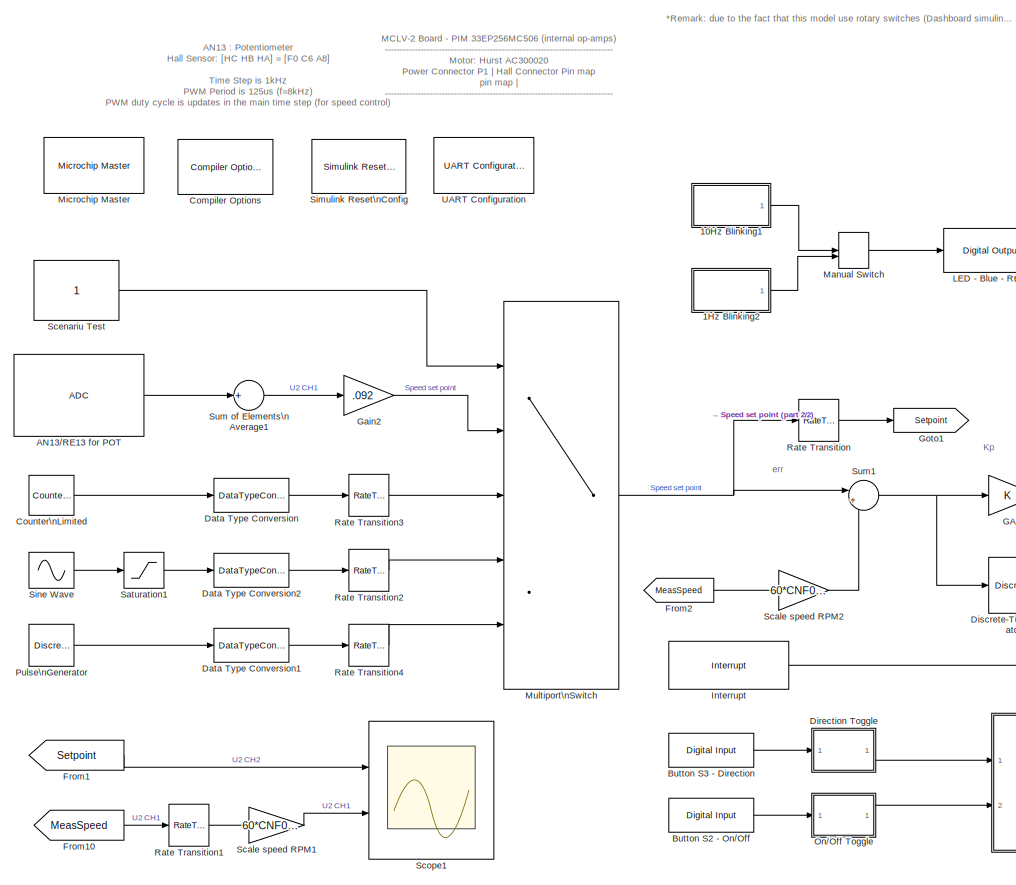
[diagram: root canvas - part 1/2, left side, full height]
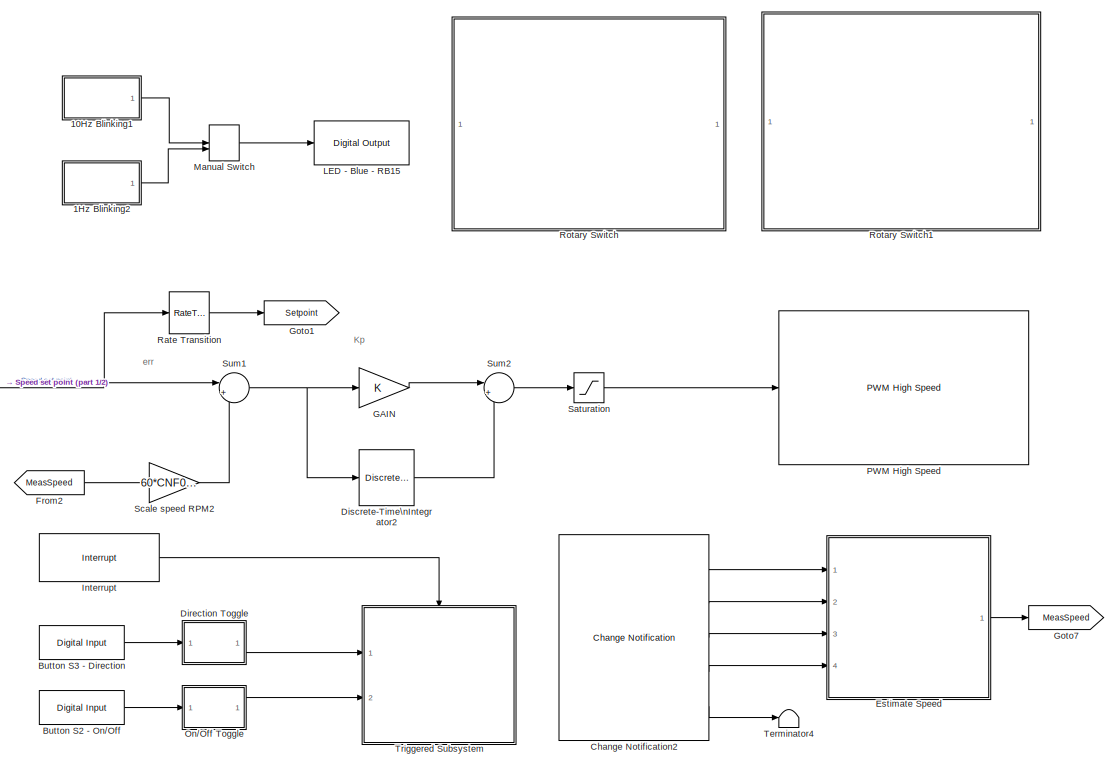
[diagram: root canvas - part 2/2, right side, full height]
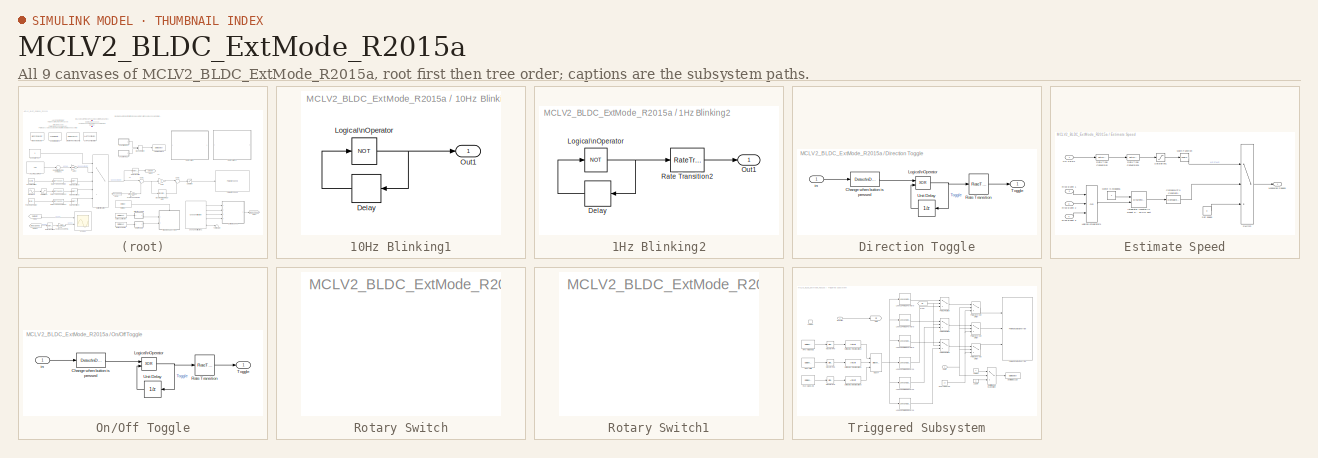
[diagram: thumbnail index - all 9 canvases of the model, root first then tree order]
MODEL MCLV2_BLDC_ExtMode_R2015a
KIND model
BLOCK [SubSystem] 10Hz Blinking1
  Ports = [0, 1]
  RequestExecContextInheritance = off
  SID = 345
BLOCK [Delay] 10Hz Blinking1/Delay
  DelayLength = 1
  InitialCondition = 0
  InputPortMap = u0
  InputProcessing = Inherited
  Ports = [1, 1]
  SID = 346
  SampleTime = .05
BLOCK [Logic] 10Hz Blinking1/Logical\nOperator
  AllPortsSameDT = off
  Operator = NOT
  OutDataTypeStr = boolean
  Ports = [1, 1]
  SID = 347
BLOCK [Outport] 10Hz Blinking1/Out1
  IconDisplay = Port number
  SID = 348
BLOCK [SubSystem] 1Hz Blinking2
  Ports = [0, 1]
  RequestExecContextInheritance = off
  SID = 349
BLOCK [Delay] 1Hz Blinking2/Delay
  DelayLength = 1
  InitialCondition = 0
  InputPortMap = u0
  InputProcessing = Inherited
  Ports = [1, 1]
  SID = 350
  SampleTime = .5
BLOCK [Logic] 1Hz Blinking2/Logical\nOperator
  AllPortsSameDT = off
  Operator = NOT
  OutDataTypeStr = boolean
  Ports = [1, 1]
  SID = 351
BLOCK [Outport] 1Hz Blinking2/Out1
  IconDisplay = Port number
  SID = 353
BLOCK [RateTransition] 1Hz Blinking2/Rate Transition2
  Deterministic = off
  OutPortSampleTime = .05
  SID = 352
BLOCK [Reference] AN13//RE13 for POT  REF=MCHP_Blockset/Analog IO/ADC
  ADC_DMA_CHANNEL = use DMA Channel 1
  ADC_R = < 5    kOhm
  ADC_REF = 1
  ADC_TIMING = [1.4400000000000001e-05]
  ADxCSS = 13
  FORM = 0000 dddd dddd dddd ==> Unsigned integer
  Info = Total Time for Sample & Conversion : 1.44e-05s including 0s (x 8) sample time.
  MCHP_MASTERLINK = MCLV2_BLDC_ExtMode_R2015a/Microchip Master
  MCHP_PORT = {Analog Input 13}{AN13}15:2:E13;
  MUXA_CH0N = off
  MUXA_CH123 = Dynamic Options
  MUXA_CH123_TXT = AN0 : AN1 : AN2
  MUXB_CH0 = AN1
  MUXB_CH0N = on
  MUXB_CH123 = Dynamic Options
  MUXB_CH123_TXT = AN0 : AN1 : AN2
  Mode = 12 bits
  Ports = [0, 1]
  Priority = 5
  SID = 3
  SIMULTANEOUS = Simultaneously on all Channels
  SSRC_SSRCG = Dynamic Options
  SSRC_SSRCG_TXT = 6
  SampleTime = 0.001
  SequenceRepeat = 8
  SequenceTiming = are done as fast as possible ; triggered by user define source
  SourceBlock = MCHP_Blockset/Analog IO/ADC
  Trig_TimeStep = with each update of the ADC block output
  Update_BlockOutput = After all trig and conversion sequence
  nSAMPLECHANNELS = CH0 only
  nSAMPLECHANNELS_12bits = CH0 only
BLOCK [Reference] Button S2 - On//Off  REF=MCHP_Blockset/Digital IO/Digital Input
  MCHP_MASTERLINK = MCLV2_BLDC_ExtMode_R2015a/Microchip Master
  MCHP_PORT = {Digital In}{DIN}2:0:G7;
  ORDERING = None
  PACK = off
  PIN = [7]
  PORT = Dynamic Options
  PORT_TXT = G   [ 6 : 9 ]
  Ports = [0, 1]
  SID = 172
  SIMULTANEOUS = off
  SampleTime = -1
  SourceBlock = MCHP_Blockset/Digital IO/Digital Input
  SourceType = Input driver for Digital Input Pins
BLOCK [Reference] Button S3 - Direction  REF=MCHP_Blockset/Digital IO/Digital Input
  MCHP_MASTERLINK = MCLV2_BLDC_ExtMode_R2015a/Microchip Master
  MCHP_PORT = {Digital In}{DIN}2:0:G6;
  ORDERING = None
  PACK = off
  PIN = [6]
  PORT = Dynamic Options
  PORT_TXT = G   [ 6 : 9 ]
  Ports = [0, 1]
  SID = 146
  SIMULTANEOUS = off
  SampleTime = -1
  SourceBlock = MCHP_Blockset/Digital IO/Digital Input
  SourceType = Input driver for Digital Input Pins
BLOCK [Reference] Change Notification2  REF=MCHP_Blockset/Pulse Input//Output/Change Notification
  CNxmax = [27343     -1     -1     -1]
  ChangeDetected = [1     1     1     2]
  Channel = [0     1     2]
  Channel_EP = [  F0  C6  A8  G7]
  Channel_OLD = [80   38    8  103]
  Channel_UP_Down_Periode = [4     0     0     0]
  IntPriority = 4
  MCHP_MASTERLINK = MCLV2_BLDC_ExtMode_R2015a/Microchip Master
  MCHP_PORT = {Change Notification F0}{CNF0}9:0:F0;{Change Notification C6}{CNC6}9:0:C6;{Change Notification A8}{CNA8}9:0:A8;{Change Notification G7}{CNG7}9:0:G7;
  MCHP_TIMER_REQUEST = {Change Notification 80}{CNF0}7:1:1:0:[]:7700000.000000001;
  MCHP_TIMER_RESULT = [1 30077.125000000022 ]
  MCHP_USER_INTERRUPTS = {CNIE}{CN}{Change Notification}{4};
  MaxChannel = [0.1   0.1   0.1   0.1]
  MaxChannelValue = 2.^[ 14.739]  =>  [27343]
  OutputPortValue = [0     0     0     0]
  Ports = [0, 5]
  SID = 325
  SafeMarge = [10    10    10    10]
  SampleTime = .001
  SourceBlock = MCHP_Blockset/Pulse Input//Output/Change Notification
  SourceType = Input driver for Change Notification Peripheral
  Status = OK
  Timer = [1 -1 -1 -1]
  UserData = DataTag0
  UserDataPersistent = on
  evalin_ws = CNF0max=MCHP_Fun.Hex2num('40DAB3C000000000');
BLOCK [Reference] Compiler Options  REF=MCHP_Blockset/System Configuration/Compiler Options
  AssemblyListing = off
  COMP_LIST = Dynamic Options
  COMP_LIST_TXT = xc16 - v1.36
  DEBUG_INFO = off
  HEAP_SIZE = 0
  LATEST_CMPLR = on
  MAGGREGATE = on
  MCHP_MASTERLINK = MCLV2_BLDC_ExtMode_R2015a/Microchip Master
  MCHP_MULTITHREAD_COMPILATION = on
  MCODE = is less than 32768 (faster)
  MCONST = in code memory
  MDATA = Use only memory below address 8192 (faster)
  MLARGEARRAY = off
  MPLAB_LINKLIB = default
  MPLAB_LINKLIB1 = default
  MSCALAR = Use only memory below address 8192 (faster)
  NO_EDS_WARN = on
  OMF = elf
  OPTIMIZATION_FLTO = on
  OPTIMIZATION_LEVEL = 3
  OPTIMIZATION_REORDER = off
  PRINT_STATISTICS = off
  PROCEDURAL_ABSTRACTION = off
  Ports = []
  Priority = 1
  ProduceHexOutput = on
  SID = 2
  SourceBlock = MCHP_Blockset/System Configuration/Compiler Options
  UNROLL_LOOPS = on
  USE_64BIT_DOUBLE = off
  UseCustom_LinkerScript = off
BLOCK [Reference] Counter\nLimited  REF=simulink/Sources/Counter\nLimited
  Ports = [0, 1]
  SID = 391
  SourceBlock = simulink/Sources/Counter\nLimited
  SourceType = Counter Limited
  tsamp = 0.005
  uplimit = 2000
BLOCK [DataTypeConversion] Data Type Conversion
  ConvertRealWorld = Stored Integer (SI)
  OutDataTypeStr = uint16
  RndMeth = Simplest
  SID = 392
  SaturateOnIntegerOverflow = off
BLOCK [DataTypeConversion] Data Type Conversion1
  ConvertRealWorld = Stored Integer (SI)
  OutDataTypeStr = uint16
  RndMeth = Simplest
  SID = 408
  SaturateOnIntegerOverflow = off
BLOCK [DataTypeConversion] Data Type Conversion2
  ConvertRealWorld = Stored Integer (SI)
  OutDataTypeStr = uint16
  RndMeth = Simplest
  SID = 409
  SaturateOnIntegerOverflow = off
BLOCK [SubSystem] Direction Toggle
  Ports = [1, 1]
  RequestExecContextInheritance = off
  SID = 139
BLOCK [Reference] Direction Toggle/Change when button is pressed  REF=simulink/Logic and Bit\nOperations/Detect\nDecrease
  InputProcessing = Inherited
  OutDataTypeStr = uint8
  Ports = [1, 1]
  SID = 141
  SourceBlock = simulink/Logic and Bit\nOperations/Detect\nDecrease
  SourceType = Detect Decrease
  vinit = 0.0
BLOCK [Logic] Direction Toggle/Logical\nOperator
  AllPortsSameDT = off
  Operator = XOR
  OutDataTypeStr = boolean
  Ports = [2, 1]
  SID = 142
BLOCK [RateTransition] Direction Toggle/Rate Transition
  Deterministic = off
  Integrity = off
  SID = 143
BLOCK [Outport] Direction Toggle/Toggle
  IconDisplay = Port number
  SID = 145
BLOCK [UnitDelay] Direction Toggle/Unit Delay
  SID = 144
  SampleTime = -1
BLOCK [Inport] Direction Toggle/in
  IconDisplay = Port number
  SID = 140
BLOCK [DiscreteIntegrator] Discrete-Time\nIntegrator2
  LimitOutput = on
  LowerSaturationLimit = 0
  OutDataTypeStr = int16
  Ports = [1, 1]
  SID = 313
  SampleTime = -1
  SaturateOnIntegerOverflow = on
  UpperSaturationLimit = PWMmax
  gainval = 20
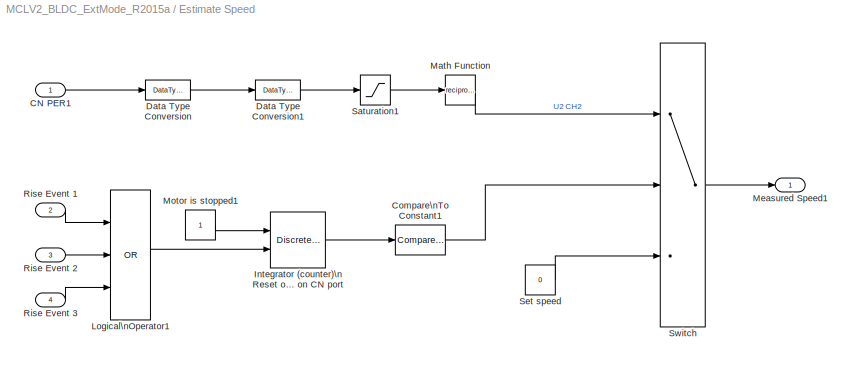
BLOCK [SubSystem] Estimate Speed
  Ports = [4, 1]
  RequestExecContextInheritance = off
  SID = 326
BLOCK [Inport] Estimate Speed/CN PER1
  IconDisplay = Port number
  SID = 327
BLOCK [Reference] Estimate Speed/Compare\nTo Constant1  REF=simulink/Logic and Bit\nOperations/Compare\nTo Constant
  OutDataTypeStr = boolean
  Ports = [1, 1]
  SID = 331
  SourceBlock = simulink/Logic and Bit\nOperations/Compare\nTo Constant
  SourceType = Compare To Constant
  ZeroCross = on
  const = 100
  relop = <=
BLOCK [DataTypeConversion] Estimate Speed/Data Type Conversion
  OutDataTypeStr = uint16
  RndMeth = Floor
  SID = 332
  SaturateOnIntegerOverflow = off
BLOCK [DataTypeConversion] Estimate Speed/Data Type Conversion1
  OutDataTypeStr = double
  RndMeth = Floor
  SID = 333
  SaturateOnIntegerOverflow = off
BLOCK [DiscreteIntegrator] Estimate Speed/Integrator (counter)\nReset on each rise edge\ndetected on CN port
  ExternalReset = level
  IntegratorMethod = Accumulation: Forward Euler
  LimitOutput = on
  LowerSaturationLimit = 0
  OutDataTypeStr = uint16
  Ports = [2, 1]
  SID = 334
  SampleTime = -1
  SaturateOnIntegerOverflow = on
  UpperSaturationLimit = 255
  gainval = 1
BLOCK [Logic] Estimate Speed/Logical\nOperator1
  AllPortsSameDT = off
  Inputs = 3
  Operator = OR
  OutDataTypeStr = boolean
  Ports = [3, 1]
  SID = 335
BLOCK [Math] Estimate Speed/Math Function
  Operator = reciprocal
  OutDataTypeStr = double
  OutputSignalType = real
  Ports = [1, 1]
  SID = 336
BLOCK [Outport] Estimate Speed/Measured Speed1
  IconDisplay = Port number
  SID = 341
BLOCK [Constant] Estimate Speed/Motor is stopped1
  OutDataTypeStr = Inherit: Inherit via back propagation
  SID = 337
BLOCK [Inport] Estimate Speed/Rise Event 1
  IconDisplay = Port number
  Port = 2
  SID = 328
BLOCK [Inport] Estimate Speed/Rise Event 2
  IconDisplay = Port number
  Port = 3
  SID = 329
BLOCK [Inport] Estimate Speed/Rise Event 3
  IconDisplay = Port number
  Port = 4
  SID = 330
BLOCK [Saturate] Estimate Speed/Saturation1
  InputPortMap = u0
  LowerLimit = 1
  Ports = [1, 1]
  SID = 338
  UpperLimit = 65535
BLOCK [Constant] Estimate Speed/Set speed
  OutDataTypeStr = Inherit: Inherit via back propagation
  SID = 339
  Value = 0
BLOCK [Switch] Estimate Speed/Switch
  Criteria = u2 ~= 0
  InputSameDT = off
  SID = 340
  SaturateOnIntegerOverflow = off
BLOCK [From] From1
  GotoTag = Setpoint
  SID = 307
BLOCK [From] From10
  GotoTag = MeasSpeed
  SID = 222
BLOCK [From] From2
  GotoTag = MeasSpeed
  SID = 310
BLOCK [Gain] GAIN
  OutDataTypeStr = int16
  ParamDataTypeStr = fixdt(1,16,10)
  RndMeth = Round
  SID = 314
BLOCK [Gain] Gain2
  Gain = .092
  OutDataTypeStr = uint16
  ParamDataTypeStr = Inherit: Inherit from 'Gain'
  RndMeth = Round
  SID = 317
BLOCK [Goto] Goto1
  GotoTag = Setpoint
  SID = 311
BLOCK [Goto] Goto7
  GotoTag = MeasSpeed
  SID = 343
BLOCK [Reference] Interrupt  REF=MCHP_Blockset/System Functions/Interrupt
  FPUNoSave = on
  Info = 0
  IntPriority = 4
  IntPriority_Info = 5
  Interruption = Dynamic Options
  InterruptionLongDesc = Change Notification
  Interruption_TXT = CN
  MCHP_MASTERLINK = MCLV2_BLDC_ExtMode_R2015a/Microchip Master
  Ports = [0, 1]
  SID = 8
  SS_ARCH = 16
  SS_ASYNCHRONOUS_INTERRUPT = 1
  SS_AsyncTaskPriority = 8
  SS_AsyncTimerRes = -1
  SS_TIMESOURCE = 1
  SourceBlock = MCHP_Blockset/System Functions/Interrupt
  SourceType = Interruption (Call Simulink Subfunction)
  StartupExecute = off
  Status = OK
  TIMER_Resolution = Dynamic Options
  TIMER_Resolution_TXT = Resol: 0.01429(us)  -  MaxPer: 0.936(ms)
  Triggered_Sub_TimeSource = is derived from model base rate
  TrigsPeriod = 0
BLOCK [Reference] LED - Blue - RB15  REF=MCHP_Blockset/Digital IO/Digital Output
  MCHP_MASTERLINK = MCLV2_BLDC_ExtMode_R2015a/Microchip Master
  ORDERING = None
  PACK = off
  PIN = [6]
  PORT = Dynamic Options
  PORT_TXT = D   [ 5  6  8 ]
  Ports = [1]
  READPREVIOUS = off
  SID = 354
  SIMULTANEOUS = off
  SampleTime = -1
  SourceBlock = MCHP_Blockset/Digital IO/Digital Output
BLOCK [ManualSwitch] Manual Switch
  CurrentSetting = 0
  SID = 355
BLOCK [Reference] Microchip Master  REF=MCHP_Blockset/System Configuration/Microchip Master
  ACLKCON = Optimized for PWM resolution & ADC conversion speed
  ACTIV_PLL = on
  ACTIV_PLL_spd = on
  AIVTDIS = Disable Alternate Vector Table
  ALTADREF = Not used
  ALTCMPI = Not used
  ALTCVREF = Not used
  ALTI2C = I2C mapped to SDA1/SCL1 pins
  ALTI2C1 = I2C1 mapped to SDA1/SCL1 pins
  ALTI2C2 = I2C2 mapped to SDA2/SCL2 pins
  ALTI2C3 = I2C3 mapped to SDA3/SCL3 pins
  ALTPMP = Not used
  ALTQIO = QEA1; QEB1; INDX1 are selected as inputs to QEI1
  ALTRB6 = Not used
  ALTSS1 = SS1A is selected as the I/O pin for SPI1
  ALTVREF = Not used
  APL = Aux Flash Code protect is disabled
  APLK = Aux Flash Write Protection or Code Protection is Enabled
  ATMOD8 = Not used
  AWRP = Aux Flash may be written
  BACKBUG = Not used
  BKBUG = Not used
  BODENV = 2.7V
  BOOTISA = Boot code and Exception code is MIPS32
  BOREN = Disable
  BOREN0 = Enabled
  BOREN1 = Not used
  BORV = Not used
  BSEN = No Boot Segment
  BSLIM = Not used
  BSS = No Boot program Flash segment
  BSS2 = No Boot Segment
  BTMODE = Not used
  BTSWP = BOOTSWP instruction is disabled
  BUSYFLAG = Dynamic Options
  BUSYFLAG_TXT = None
  BWP = Not used
  BWRP = Boot Segment may be written
  CMPPOL0 = Hysteresis is applied to falling edge
  CMPPOL1 = Hysteresis is applied to falling edge
  COE = Not used
  CP = Protection Disabled
  CSEQ = Not used
  CSS = No Protection (other than CWRP)
  CTXT1 = Not Assigned
  CTXT2 = Not Assigned
  CWRP = Configuration Segment may be written
  DBCC = No Cross Connection between DAC outputs
  DBGPER = Allow CPU access to all permission regions
  DEBUG = Debugger is disabled
  DFMCY = Not used
  DISUVREG = Not used
  DMTCNT = 2^31 (2147483648)
  DMTEN = Dead Man Timer is Enabled and cannot be disabled by software
  DMTINTV = Window/Interval value is 127/128 counter value
  DMTIVT = Not used
  DSBOREN = Enable ZPBOR during Deep Sleep Mode
  DSLPBOR = Not used
  DSSWEN = Not used
  DSWDTEN = Enable DSWDT during Deep Sleep Mode
  DSWDTOSC = Select LPRC as DSWDT Reference clock
  DSWDTPS = 1:2^36
  EBS = No Boot EEPROM
  EJTAGBEN = Normal EJTAG functionality
  ESS = No Segment Data EEPROM
  EXTDDRSIZE = Not used
  FCANIO = Not used
  FCKSM = Clock switching is enabled;Fail-safe Clock Monitor is disabled
  FCKSMEN = Sw Disabled; Mon Disabled
  FDMTEN = Deadman Timer is disabled
  FECCCON = ECC and Dynamic ECC are disabled (ECCCON bits are writable)
  FETHIO = Default Ethernet I/O
  FMIIEN = MII Enabled
  FNOSC = Primary Oscillator (XT; HS; EC)
  FOS = Primary Oscillator
  FOSFPR = HS3 w/PLL 16x
  FPBDIV = Not used
  FPLLICLK = FRC is input to the System PLL
  FPLLIDIV = 8x Divider
  FPLLMUL = Not used
  FPLLMULT = PLL Multiply by 128
  FPLLODIV = 32x Divider
  FPLLRNG = 34-68 MHz Input
  FPR = ECIO w/ PLL 16x
  FPWRT = 128ms
  FRANGE = High Range
  FSLEEP = Flash is powered down when the device is in Sleep mode
  FSOSCEN = Enable SOSC
  FSRSSEL = Not used
  FUSBIDIO = Controlled by the USB Module
  FVBUSONIO = Not used
  FWDTEN = Disable
  FWDTWINSZ = Window size is 25%
  FWPSA = 1:512
  FWPSA0 = 1:128
  FWPSB = 1:16
  GCP = General Segment Code protect is Disabled
  GSS = User program memory is not code-protected
  GSS0 = Not used
  GSSK = General Segment Write Protection or Code Protection is Enabled
  GWRP = General Segment may be written
  HPOL = PWM module high side output pins have active-high output polarity
  HYST0 = 45 mV Hysteresis
  HYST1 = 45 mV Hysteresis
  I2C1SEL = Not used
  I2C2SEL = Not used
  ICESEL = Communicate on PGEC1/PGED1
  ICS = Communicate on PGEC2 and PGED2
  IESO = Start up with FRC; then switch
  INT_PRIORITY_DMA = 0
  IOL1WAY = Allow only one reconfiguration
  JTAGEN = Disable
  LPCFG = Not used
  LPOL = PWM module low side output pins have active-high output polarity
  LPRCSEL = Not used
  LVRCFG = Not used
  MCHPVAR = MCHP.fcy.MIPS=70000000;MCHP.fcy.SYSCLK=70000000;MCHP.fcy.ADC=70000000;MCHP.fcy.Comparator=70000000;MCHP.fcy.I2C=70000000;MCHP.fcy.SPI=70000000;MCHP.fcy.UART=70000000;MCHP.fcy.Timers=70000000;MCHP.fcy.OC=70000000;MCHP.fcy.IC=70000000;MCHP.fcy.Ports=70000000;MCHP.fcy.QEI=70000000;MCHP.PowerSave=0;MCHP.TimeStepFactor=-1000;MCHP.TimeStep_Timer=-1;MCHP.NTIMERS=5;MCHP.id.name='33EP256MC506';MCHP.id.N=re...<+13666ch>
  MCHP_CRC = 6833710
  MCHP_PLLRegisters = [5    243  16385     -1     -1]
  MCHP_TIMER_RESULT = [ ]
  MCLRE = Enabled
  MIPS = 70 * 1e6
  MIPS_DESIRED = 70e6
  MIPS_DESIRED_spd = 70e6
  ON = Not used
  OSCILLATOR_SELECT = Crystal / Ceramic resonator
  OSCILLATOR_SELECT_spd = Crystal / Ceramic resonator
  OSCIOFCN = Not used
  OSCIOFNC = general purpose digital I/O pin
  PGL1WAY = Allow only one reconfiguration
  PICREF = 33EP256MC506
  PLL96MHZ = Not used
  PLLDIV = Not used
  PLLKEN = Clock switch to PLL source will wait until the PLL lock signal is valid.
  PLLSS = Not used
  PLL_96MHZ = Not used
  PMDL1WAY = Allow only one reconfiguration
  POSCBOOST = Boost the kick start of the oscillator
  POSCFREQ = Not used
  POSCGAIN = 2x gain setting
  POSCMD = XT Crystal Oscillator Mode
  POSCMOD = Primary osc disabled
  POWERSAVE = off
  PWMLOCK = PWM registers may be written without key sequence
  PWMPIN = PWM module pins controlled by PORT register at device Reset
  PWP = Not used
  PWRTEN = Not used
  Ports = []
  Priority = 1
  QUARTZ = 8e6
  QUARTZ_spd = 8e6
  RBS = No Boot RAM
  RES = Not used
  RES1 = Not used
  RES2 = Not used
  RESERVED1 = Not used
  RETCFG = Not used
  RSS = No Secure RAM
  RSTPRI = Device will obtain reset instruction from Primary flash
  RTCBAT = Not used
  RTCOSC = Not used
  SEQNUM = Not used
  SID = 1
  SMCLR = MCLR pin generates a normal system Reset
  SOSCBOOST = Boost the kick start of the oscillator
  SOSCGAIN = 2x gain setting
  SOSCSEL = Not used
  SOSCSRC = Not used
  SSS = No Secure Segment
  SWRP = Secure segment may be written
  SourceBlock = MCHP_Blockset/System Configuration/Microchip Master
  TEMP = Not used
  TIMESTEP_REF = ADC
  TRCEN = Trace features in the CPU are enabled
  TSEQ = Not used
  UPLLEN = USB PLL Disabled
  UPLLFSEL = USB PLL input is 24 MHz
  UPLLIDIV = Not used
  USERID = Not used
  VBTBOR = Not used
  WDT = Disable
  WDTCLK = Not used
  WDTCMX = Not used
  WDTEN = Disable
  WDTPOST = 1:32768
  WDTPRE = 1:128
  WDTPS = 1:1048576
  WDTSPGM = WDT stops during Flash programming
  WDTWIN = WDT Window is 25% of WDT period
  WINDIS = Watchdog Timer in Non-Window mode
  WPCFG = Not used
  WPDIS = Not used
  WPEND = Not used
  WPFP = Not used
  WUTSEL = Not used
  WWDTEN = Non-Window mode
  XTBST = Boost the kick-start
  XTCFG = 24-32 MHz crystals
  nSEQNUM = Not used
BLOCK [MultiPortSwitch] Multiport\nSwitch
  InputSameDT = off
  Inputs = 4
  Ports = [5, 1]
  SID = 366
  SaturateOnIntegerOverflow = off
BLOCK [SubSystem] On//Off Toggle
  Ports = [1, 1]
  RequestExecContextInheritance = off
  SID = 173
BLOCK [Reference] On//Off Toggle/Change when button is pressed  REF=simulink/Logic and Bit\nOperations/Detect\nDecrease
  InputProcessing = Inherited
  OutDataTypeStr = uint8
  Ports = [1, 1]
  SID = 175
  SourceBlock = simulink/Logic and Bit\nOperations/Detect\nDecrease
  SourceType = Detect Decrease
  vinit = 0.0
BLOCK [Logic] On//Off Toggle/Logical\nOperator
  AllPortsSameDT = off
  Operator = XOR
  OutDataTypeStr = boolean
  Ports = [2, 1]
  SID = 176
BLOCK [RateTransition] On//Off Toggle/Rate Transition
  Deterministic = off
  Integrity = off
  SID = 177
BLOCK [Outport] On//Off Toggle/Toggle
  IconDisplay = Port number
  SID = 179
BLOCK [UnitDelay] On//Off Toggle/Unit Delay
  SID = 178
  SampleTime = -1
BLOCK [Inport] On//Off Toggle/in
  IconDisplay = Port number
  SID = 174
BLOCK [Reference] PWM High Speed  REF=MCHP_Blockset/PWM IO/PWM High Speed
  ADC_VARTRIG = {PWM Primary Special Event Trigger;6}
  ChkCurBlkOut = [1  0  0  0  0  0  0]
  ChkCurBlkOutTime = [1  0  1  0  0  0  0]
  InitDC = { '20','0.0004','0.0003','50','50','50','50';'0.001','0.001','0.001','50','50','50','50'}
  InitP2 = { '0.000125','0.001','0.001','0.001','0.001','0.001','0.001';'0.001','0.001','0.001','0.001','0.001','0.001','0.001'}
  InitPh = { '0','0','0','0.001','0.001','0.001','0.001';'0','0','0','0.001','0.001','0.001','0.001'}
  MCHP_MASTERLINK = MCLV2_BLDC_ExtMode_R2015a/Microchip Master
  MCHP_PORT = {PWM1 Fault}{FLT32}4:0:B4;{PWM2 Fault}{FLT32}4:0:B4;{PWM3 Fault}{FLT32}4:0:B4;{PWM1H}{PWM1H}4:4:B14;{PWM1L}{PWM1L}4:4:B15;{PWM2H}{PWM2H}4:4:B12;{PWM2L}{PWM2L}4:4:B13;{PWM3H}{PWM3H}4:4:B10;{PWM3L}{PWM3L}4:4:B11;
  MCHP_VERSION = v3.38
  ORDERING = None
  Parameter50 = 0
  Ports = [1]
  SID = 5
  S_DWORK_Size = []
  S_DWORK_Type = []
  S_INPUT = [5]
  S_INPUT_Size = [1]
  S_OUTPUT = []
  S_OUTPUT_Size = []
  SampleTime = -1
  SourceBlock = MCHP_Blockset/PWM IO/PWM High Speed
  UserData = DataTag1
  UserDataPersistent = on
  chk1 = [0  0  0  0  0]
  chkDC = [1  1  1  1  1  1  1 ; 0  0  0  1  1  1  1]
  chkFltBlkOut = [0  0  0  0  0  0  0]
  chkHL1 = [1  1  1  1  1  1  1 ; 1  1  1  1  1  1  1]
  chkP2 = [0  1  1  1  1  1  1 ; 1  0  0  1  1  1  1]
  chkPh = [0  0  0  1  1  1  1 ; 0  0  0  1  1  1  1]
  chkSEvTrigx = [0  0  0  1  1  1  1]
  edAltDTRx = { '1e-06','1e-06','1e-06','1e-05','1e-05','1e-05','1e-05'}
  edDTRx = { '1e-06','1e-06','1e-06','1e-05','1e-05','1e-05','1e-05'}
  edLEB = { '100e-9','50e-9','150e-9','50e-9','50e-9','50e-9','50e-9'}
  edSEvTrigx = { '0.000125','-1','-1','-1','-1','-1','-1'}
  evalin_ws = PWMmax = 17499;PWM1max = 17499;PWM2max = 17499;PWM3max = 17499;
  maxP1 = { '0.000125','0.001','0.001','0.001','0.001','0.001','0.001';'0.001','0.001','1e-06','0.001','0.001','0.001','0.001'}
  pop1 = [1]
  popBLANKSEL = [1  1  1  1  1  1  1]
  popBPHHBPHL = [1  1  1  1  1  1  1]
  popBPLHBPLL = [1  1  1  1  1  1  1]
  popCurActiveH = [1  1  1  1  1  1  1]
  popCurEnabled = [1  1  1  1  1  1  1]
  popCurForceH = [2  1  2  1  1  1  1]
  popCurForceL = [2  1  2  1  1  1  1]
  popCurPin = [33  31  32  16  16  16  16]
  popDT = [1  1  1  3  3  3  3]
  popFLTLEBEN_CLLEBEN = [1  1  1  1  1  1  1]
  popFlt = [2  2  2  1  1  1  1]
  popFltActivH = [2  2  2  1  1  1  1]
  popFltForceH = [2  2  2  2  2  2  2]
  popFltForceL = [2  2  2  1  1  1  1]
  popFltPin = [20  20  20   4   4   4   4]
  popFltPinRp = [1  1  1  1  1  1  1]
  popIndepFaultMode = [1  1  1  1  1  1  1]
  popPHR_PHF = [2  1  1  1  1  1  1]
  popPLR_PLF = [3  1  1  1  1  1  1]
BLOCK [DiscretePulseGenerator] Pulse\nGenerator
  Amplitude = 2000
  Period = 10000
  Ports = [0, 1]
  PulseWidth = 5000
  SID = 399
  SampleTime = 0.001
BLOCK [RateTransition] Rate Transition
  Deterministic = off
  OutPortSampleTime = 0.01
  SID = 362
BLOCK [RateTransition] Rate Transition1
  Deterministic = off
  OutPortSampleTime = 0.01
  SID = 365
BLOCK [RateTransition] Rate Transition2
  Deterministic = off
  SID = 393
BLOCK [RateTransition] Rate Transition3
  SID = 394
BLOCK [RateTransition] Rate Transition4
  Deterministic = off
  SID = 398
BLOCK [SubSystem] Rotary Switch
  DialogController = hmiCreateDDGDialog
  DialogControllerArgs = DataTag2
  IsWebBlock = on
  MaskHideContents = on
  Ports = []
  RequestExecContextInheritance = off
  SID = 375
BLOCK [SubSystem] Rotary Switch1
  DialogController = hmiCreateDDGDialog
  DialogControllerArgs = DataTag3
  IsWebBlock = on
  MaskHideContents = on
  Ports = []
  RequestExecContextInheritance = off
  SID = 400
BLOCK [Saturate] Saturation
  InputPortMap = u0
  LinearizeAsGain = off
  LowerLimit = 0
  OutDataTypeStr = uint16
  Ports = [1, 1]
  SID = 39
  UpperLimit = PWMmax
BLOCK [Saturate] Saturation1
  InputPortMap = u0
  LinearizeAsGain = off
  LowerLimit = 0
  Ports = [1, 1]
  SID = 395
  UpperLimit = 2000
BLOCK [Gain] Scale speed RPM1
  Gain = 60*CNF0max / (5*0.1)
  OutDataTypeStr = uint16
  ParamDataTypeStr = Inherit: Inherit via internal rule
  RndMeth = Round
  SID = 305
BLOCK [Gain] Scale speed RPM2
  Gain = 60*CNF0max / (5*0.1)
  OutDataTypeStr = uint16
  ParamDataTypeStr = Inherit: Inherit via internal rule
  RndMeth = Round
  SID = 319
BLOCK [Constant] Scenariu Test
  OutDataTypeStr = uint16
  SID = 367
BLOCK [Scope] Scope1
  DataFormat = StructureWithTime
  Floating = off
  LimitDataPoints = off
  NumInputPorts = 2
  Ports = [2]
  SID = 403
  SaveName = ScopeData1
  TimeRange = 25
  YMax = 3387.375~5
  YMin = -376.375~-5
BLOCK [Reference] Simulink Reset\nConfig  REF=MCHP_Blockset/System Configuration/Simulink Reset\nConfig
  MCHP_MASTERLINK = 0
  Ports = []
  SID = 320
  SourceBlock = MCHP_Blockset/System Configuration/Simulink Reset\nConfig
BLOCK [Sin] Sine Wave
  Amplitude = 2000
  Ports = [0, 1]
  SID = 396
  SampleTime = 0.01
  Samples = 4096
  SineType = Sample based
BLOCK [Sum] Sum of Elements\nAverage1
  AccumDataTypeStr = uint16
  InputSameDT = off
  Inputs = +
  OutDataTypeStr = uint16
  Ports = [1, 1]
  SID = 318
  SaturateOnIntegerOverflow = off
BLOCK [Sum] Sum1
  AccumDataTypeStr = fixdt(1,16,-1)
  IconShape = round
  InputSameDT = off
  Inputs = |+-
  OutDataTypeStr = fixdt(1,16,-1)
  Ports = [2, 1]
  SID = 316
BLOCK [Sum] Sum2
  AccumDataTypeStr = int16
  IconShape = round
  InputSameDT = off
  Inputs = |++
  OutDataTypeStr = uint16
  Ports = [2, 1]
  SID = 315
BLOCK [Terminator] Terminator4
  SID = 344
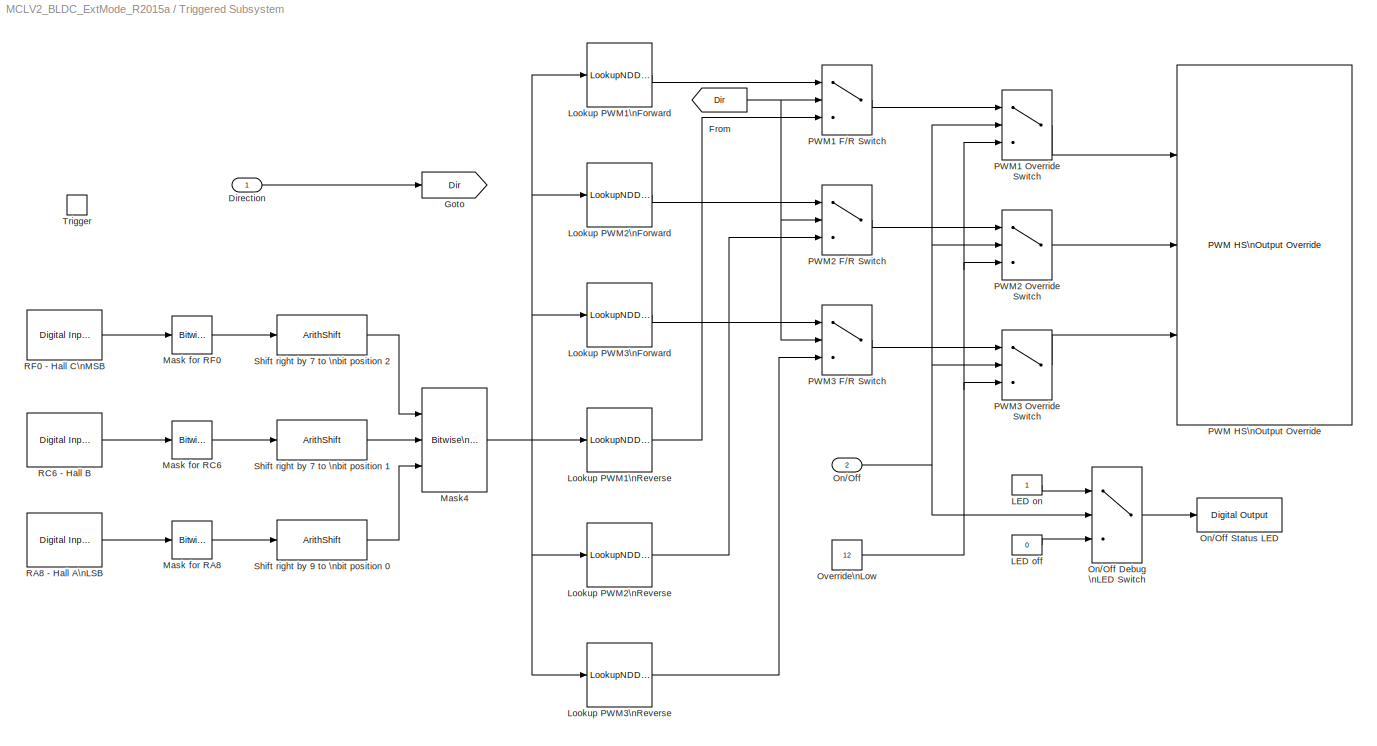
BLOCK [SubSystem] Triggered Subsystem
  Ports = [2, 0, 0, 1]
  RequestExecContextInheritance = off
  SID = 72
  TreatAsAtomicUnit = on
BLOCK [Inport] Triggered Subsystem/Direction
  IconDisplay = Port number
  SID = 136
BLOCK [From] Triggered Subsystem/From
  GotoTag = Dir
  SID = 138
BLOCK [Goto] Triggered Subsystem/Goto
  GotoTag = Dir
  SID = 137
BLOCK [Constant] Triggered Subsystem/LED off
  OutDataTypeStr = boolean
  SID = 190
  Value = 0
BLOCK [Constant] Triggered Subsystem/LED on
  OutDataTypeStr = boolean
  SID = 189
BLOCK [LookupNDDirect] Triggered Subsystem/Lookup PWM1\nForward
  NumberOfTableDimensions = 1
  Ports = [1, 1]
  SID = 9
  Table = [12 13 4 12 12 13 4 12]
  TableDataTypeStr = uint16
BLOCK [LookupNDDirect] Triggered Subsystem/Lookup PWM1\nReverse
  NumberOfTableDimensions = 1
  Ports = [1, 1]
  SID = 133
  Table = [12 4 13 12 12 4 13 12]
  TableDataTypeStr = uint16
BLOCK [LookupNDDirect] Triggered Subsystem/Lookup PWM2\nForward
  NumberOfTableDimensions = 1
  Ports = [1, 1]
  SID = 70
  Table = [12 12 13 13 4 4 12 12]
  TableDataTypeStr = uint16
BLOCK [LookupNDDirect] Triggered Subsystem/Lookup PWM2\nReverse
  NumberOfTableDimensions = 1
  Ports = [1, 1]
  SID = 134
  Table = [12 12 4 4 13 13 12 12]
  TableDataTypeStr = uint16
BLOCK [LookupNDDirect] Triggered Subsystem/Lookup PWM3\nForward
  NumberOfTableDimensions = 1
  Ports = [1, 1]
  SID = 71
  Table = [12 4 12 4 13 12 13 12]
  TableDataTypeStr = uint16
BLOCK [LookupNDDirect] Triggered Subsystem/Lookup PWM3\nReverse
  NumberOfTableDimensions = 1
  Ports = [1, 1]
  SID = 135
  Table = [12 13 12 13 4 12 4 12]
  TableDataTypeStr = uint16
BLOCK [Reference] Triggered Subsystem/Mask for RA8  REF=simulink/Logic and Bit\nOperations/Bitwise\nOperator
  BitMask = bin2dec('0000 0001 0000 0000')
  BitMaskRealWorld = Stored Integer
  NumInputPorts = 1
  Ports = [1, 1]
  SID = 113
  SourceBlock = simulink/Logic and Bit\nOperations/Bitwise\nOperator
  SourceType = Bitwise Operator
  UseBitMask = on
  logicop = AND
BLOCK [Reference] Triggered Subsystem/Mask for RC6  REF=simulink/Logic and Bit\nOperations/Bitwise\nOperator
  BitMask = bin2dec('0000 0000 0100 0000')
  BitMaskRealWorld = Stored Integer
  NumInputPorts = 1
  Ports = [1, 1]
  SID = 112
  SourceBlock = simulink/Logic and Bit\nOperations/Bitwise\nOperator
  SourceType = Bitwise Operator
  UseBitMask = on
  logicop = AND
BLOCK [Reference] Triggered Subsystem/Mask for RF0  REF=simulink/Logic and Bit\nOperations/Bitwise\nOperator
  BitMask = bin2dec('0000 0000 0000 0001')
  BitMaskRealWorld = Stored Integer
  NumInputPorts = 1
  Ports = [1, 1]
  SID = 111
  SourceBlock = simulink/Logic and Bit\nOperations/Bitwise\nOperator
  SourceType = Bitwise Operator
  UseBitMask = on
  logicop = AND
BLOCK [Reference] Triggered Subsystem/Mask4  REF=simulink/Logic and Bit\nOperations/Bitwise\nOperator
  BitMask = bin2dec('0000000000000100')
  BitMaskRealWorld = Stored Integer
  NumInputPorts = 3
  Ports = [3, 1]
  SID = 114
  SourceBlock = simulink/Logic and Bit\nOperations/Bitwise\nOperator
  SourceType = Bitwise Operator
  UseBitMask = off
  logicop = OR
BLOCK [Inport] Triggered Subsystem/On//Off
  IconDisplay = Port number
  Port = 2
  SID = 170
BLOCK [Switch] Triggered Subsystem/On//Off Debug \nLED Switch
  Criteria = u2 ~= 0
  InputSameDT = off
  SID = 188
  SaturateOnIntegerOverflow = off
BLOCK [Reference] Triggered Subsystem/On//Off Status LED  REF=MCHP_Blockset/Digital IO/Digital Output
  MCHP_MASTERLINK = MCLV2_BLDC_ExtMode/Microchip Master
  MCHP_PORT = {Digital Out}{DOU}1:1:A0;{Digital Out}{DOU}1:1:A1;{Digital Out}{DOU}1:1:A2;
  ORDERING = None
  PACK = off
  PIN = [5]
  PORT = Dynamic Options
  PORT_TXT = D   [ 5  6  8 ]
  Ports = [1]
  READPREVIOUS = off
  SID = 191
  SIMULTANEOUS = off
  SampleTime = -1
  SourceBlock = MCHP_Blockset/Digital IO/Digital Output
BLOCK [Constant] Triggered Subsystem/Override\nLow
  OutDataTypeStr = uint16
  SID = 171
  Value = 12
BLOCK [Reference] Triggered Subsystem/PWM HS\nOutput Override  REF=MCHP_Blockset/PWM IO/PWM HS\nOutput Override
  MCHP_MASTERLINK = MCLV2_BLDC_ExtMode_R2015a/Microchip Master
  OVEREN_OVERDAT_Initial = [12  12  12]
  PWM_Refs = [1 2 3]
  Ports = [3]
  SID = 10
  S_INPUT = [5  5  5]
  S_INPUT_Size = [1  1  1]
  S_OUTPUT = []
  S_OUTPUT_Size = []
  SampleTime = -1
  SourceBlock = MCHP_Blockset/PWM IO/PWM HS\nOutput Override
  SourceType = High Speed PWM Override outputs
  UserData = DataTag4
  UserDataPersistent = on
BLOCK [Switch] Triggered Subsystem/PWM1 F//R Switch
  Criteria = u2 ~= 0
  InputSameDT = off
  SID = 130
  SaturateOnIntegerOverflow = off
BLOCK [Switch] Triggered Subsystem/PWM1 Override Switch
  Criteria = u2 ~= 0
  InputSameDT = off
  SID = 167
  SaturateOnIntegerOverflow = off
BLOCK [Switch] Triggered Subsystem/PWM2 F//R Switch
  Criteria = u2 ~= 0
  InputSameDT = off
  SID = 131
  SaturateOnIntegerOverflow = off
BLOCK [Switch] Triggered Subsystem/PWM2 Override Switch
  Criteria = u2 ~= 0
  InputSameDT = off
  SID = 168
  SaturateOnIntegerOverflow = off
BLOCK [Switch] Triggered Subsystem/PWM3 F//R Switch
  Criteria = u2 ~= 0
  InputSameDT = off
  SID = 132
  SaturateOnIntegerOverflow = off
BLOCK [Switch] Triggered Subsystem/PWM3 Override Switch
  Criteria = u2 ~= 0
  InputSameDT = off
  SID = 169
  SaturateOnIntegerOverflow = off
BLOCK [Reference] Triggered Subsystem/RA8 - Hall A\nLSB  REF=MCHP_Blockset/Digital IO/Digital Input
  MCHP_MASTERLINK = MCLV2_BLDC_ExtMode_R2015a/Microchip Master
  MCHP_PORT = {Digital In}{DIN}2:0:A8;
  ORDERING = None
  PACK = on
  PIN = [8]
  PORT = Dynamic Options
  PORT_TXT = A   [ 0  1  4  7  8  9  10  11  12 ]
  Ports = [0, 1]
  SID = 78
  SIMULTANEOUS = off
  SampleTime = -1
  SourceBlock = MCHP_Blockset/Digital IO/Digital Input
  SourceType = Input driver for Digital Input Pins
BLOCK [Reference] Triggered Subsystem/RC6 - Hall B   REF=MCHP_Blockset/Digital IO/Digital Input
  MCHP_MASTERLINK = MCLV2_BLDC_ExtMode_R2015a/Microchip Master
  MCHP_PORT = {Digital In}{DIN}2:0:C6;
  ORDERING = None
  PACK = on
  PIN = [6]
  PORT = Dynamic Options
  PORT_TXT = C   [ 0  1  2  3  4  5  6  7  8  9  10  11  12  13  15 ]
  Ports = [0, 1]
  SID = 76
  SIMULTANEOUS = off
  SampleTime = -1
  SourceBlock = MCHP_Blockset/Digital IO/Digital Input
  SourceType = Input driver for Digital Input Pins
BLOCK [Reference] Triggered Subsystem/RF0 - Hall C\nMSB   REF=MCHP_Blockset/Digital IO/Digital Input
  MCHP_MASTERLINK = MCLV2_BLDC_ExtMode_R2015a/Microchip Master
  MCHP_PORT = {Digital In}{DIN}2:0:F0;
  ORDERING = None
  PACK = on
  PIN = [0]
  PORT = Dynamic Options
  PORT_TXT = F   [ 0 : 1 ]
  Ports = [0, 1]
  SID = 79
  SIMULTANEOUS = off
  SampleTime = -1
  SourceBlock = MCHP_Blockset/Digital IO/Digital Input
  SourceType = Input driver for Digital Input Pins
BLOCK [ArithShift] Triggered Subsystem/Shift right by 7 to \nbit position 1
  BitShiftNumber = 5
  InputPortMap = u0
  Ports = [1, 1]
  SID = 115
BLOCK [ArithShift] Triggered Subsystem/Shift right by 7 to \nbit position 2
  BitShiftNumber = -2
  InputPortMap = u0
  Ports = [1, 1]
  SID = 116
BLOCK [ArithShift] Triggered Subsystem/Shift right by 9 to \nbit position 0
  BitShiftNumber = 8
  InputPortMap = u0
  Ports = [1, 1]
  SID = 117
BLOCK [TriggerPort] Triggered Subsystem/Trigger
  Ports = []
  SID = 74
  StatesWhenEnabling = held
  TriggerType = function-call
BLOCK [Reference] UART Configuration  REF=MCHP_Blockset/BUS UART/UART Configuration
  ALT_IO = on
  BAUD_Choice = Dynamic Options
  BAUD_Choice_IR = Dynamic Options
  BAUD_Choice_IR_InitSeq = Dynamic Options
  BAUD_Choice_IR_InitSeq_TXT = 0
  BAUD_Choice_IR_TXT = []
  BAUD_Choice_InitSeq = Dynamic Options
  BAUD_Choice_InitSeq_TXT = 110         [-0.00%]
  BAUD_Choice_TXT = 921600         [-0.06%]
  BAUD_Custom = 115200
  BAUD_Custom_InitSeq = 0
  DuplexMode = Full duplex (default)
  FlowControl = None
  INT_PRIORITY = 0
  IRDA = off
  InitSequence = 'Hello World'
  InitSequence_chkbox = off
  MCHP_COM_ExtPil = on
  MCHP_MASTERLINK = MCLV2_BLDC_ExtMode_R2015a/Microchip Master
  MCHP_PORT = {UART2  Rx}{U2RX}3:0:P53;{UART2  Tx}{U2TX}3:1:P97;
  PIN_CTS = Dynamic Options
  PIN_CTS_TXT = A4 / P20 / Pin[33]
  PIN_RTS = Dynamic Options
  PIN_RTS_TXT = A4 / P20 / Pin[33]
  PIN_RX = Dynamic Options
  PIN_RXTX_Inv = off
  PIN_RX_Inv = off
  PIN_RX_TXT = C5 / P53 / Pin[37]
  PIN_TX = Dynamic Options
  PIN_TX_Inv = off
  PIN_TX_TXT = F1 / P97 / Pin[59]
  ParityBit = No parity (default)
  Ports = []
  RX_CIRCULAR_SIZE = 256
  RX_DMA_CHANNEL = 0
  RX_DMA_SIZE = 0
  RX_IMPLEMENTATION = Circular Buffer
  RX_IMPLEMENTATION_default = Circular Buffer
  RX_INT_PRIORITY = 6
  RX_INT_WHEN = receive 1 character
  SID = 220
  SourceBlock = MCHP_Blockset/BUS UART/UART Configuration
  SourceType = Configuration for UART peripheral
  StopBit = 1 stop bit (default)
  TX_CIRCULAR_SIZE = 256
  TX_DMA_CHANNEL = 0   (Lowest Priority)
  TX_DMA_SIZE = []
  TX_IMPLEMENTATION = Circular Buffer
  TX_IMPLEMENTATION_default = Circular Buffer
  TX_INTERRUPT_PROTECTION = Do not send on conflict (default)
  TX_INTERRUPT_PROTECTION_default = Do not send on conflict (default)
  TX_INT_PRIORITY = 5
  TX_INT_WHEN = is empty
  TX_INT_WHEN_default = is empty & last char is sent
  TX_TASK_PROTECTION = Delay tasks (default)
  UART_REF = 2
ANNOTATION (root): \n \n *Remark: due to the fact that this model use rotary switches (Dashboard simulink library), build this model with Matlab R2015a or newer.
ANNOTATION (root): AN13 : Potentiometer\nHall Sensor: [HC HB HA] = [F0 C6 A8]\n\nTime Step is 1kHz\nPWM Period is 125us (f=8kHz)\nPWM duty cycle is updates in the main time step (for speed control)\nfrom the ADC (pot) alone, as in app note AN957 open loop configuration\nPWM channels are asynchrousnly updated (on / off) on each Hall sensor change detected\nthru CN interrupt
ANNOTATION (root): Kp
ANNOTATION (root): MCLV-2 Board - PIM 33EP256MC506 (internal op-amps)\n----------------------------------------------------------------------------\nMotor: Hurst AC300020\nPower Connector P1 | Hall Connector Pin map\npin map | \n---------------------------------------------------------------------------- \n 1 => M1 | 1 => +5V\n 2 => M2 | 2 => Gnd\n 3 => M3 | 3 => HC\n 4 => Gnd | 4 => HA\n | 5 => HB
ANNOTATION (root): err
LINE 10Hz Blinking1/Delay:1 -> 10Hz Blinking1/Logical\nOperator:1
NET 10Hz Blinking1/Logical\nOperator:1 -> 10Hz Blinking1/Delay:1, 10Hz Blinking1/Out1:1
LINE 10Hz Blinking1:1 -> Manual Switch:1
LINE 1Hz Blinking2/Delay:1 -> 1Hz Blinking2/Logical\nOperator:1
NET 1Hz Blinking2/Logical\nOperator:1 -> 1Hz Blinking2/Delay:1, 1Hz Blinking2/Rate Transition2:1
LINE 1Hz Blinking2/Rate Transition2:1 -> 1Hz Blinking2/Out1:1
LINE 1Hz Blinking2:1 -> Manual Switch:2
LINE AN13//RE13 for POT:1 -> Sum of Elements\nAverage1:1
LINE Button S2 - On//Off:1 -> On//Off Toggle:1
LINE Button S3 - Direction:1 -> Direction Toggle:1
LINE Change Notification2:1 -> Estimate Speed:1
LINE Change Notification2:2 -> Estimate Speed:2
LINE Change Notification2:3 -> Estimate Speed:3
LINE Change Notification2:4 -> Estimate Speed:4
LINE Change Notification2:5 -> Terminator4:1
LINE Counter\nLimited:1 -> Data Type Conversion:1
LINE Data Type Conversion1:1 -> Rate Transition4:1
LINE Data Type Conversion2:1 -> Rate Transition2:1
LINE Data Type Conversion:1 -> Rate Transition3:1
LINE Direction Toggle/Change when button is pressed:1 -> Direction Toggle/Logical\nOperator:1
NET Direction Toggle/Logical\nOperator:1 -> Direction Toggle/Rate Transition:1, Direction Toggle/Unit Delay:1
LINE Direction Toggle/Rate Transition:1 -> Direction Toggle/Toggle:1
LINE Direction Toggle/Unit Delay:1 -> Direction Toggle/Logical\nOperator:2
LINE Direction Toggle/in:1 -> Direction Toggle/Change when button is pressed:1
LINE Direction Toggle:1 -> Triggered Subsystem:1
LINE Discrete-Time\nIntegrator2:1 -> Sum2:2
LINE Estimate Speed/CN PER1:1 -> Estimate Speed/Data Type Conversion:1
LINE Estimate Speed/Compare\nTo Constant1:1 -> Estimate Speed/Switch:2
LINE Estimate Speed/Data Type Conversion1:1 -> Estimate Speed/Saturation1:1
LINE Estimate Speed/Data Type Conversion:1 -> Estimate Speed/Data Type Conversion1:1
LINE Estimate Speed/Integrator (counter)\nReset on each rise edge\ndetected on CN port:1 -> Estimate Speed/Compare\nTo Constant1:1
LINE Estimate Speed/Logical\nOperator1:1 -> Estimate Speed/Integrator (counter)\nReset on each rise edge\ndetected on CN port:2
LINE Estimate Speed/Math Function:1 -> Estimate Speed/Switch:1
LINE Estimate Speed/Motor is stopped1:1 -> Estimate Speed/Integrator (counter)\nReset on each rise edge\ndetected on CN port:1
LINE Estimate Speed/Rise Event 1:1 -> Estimate Speed/Logical\nOperator1:1
LINE Estimate Speed/Rise Event 2:1 -> Estimate Speed/Logical\nOperator1:2
LINE Estimate Speed/Rise Event 3:1 -> Estimate Speed/Logical\nOperator1:3
LINE Estimate Speed/Saturation1:1 -> Estimate Speed/Math Function:1
LINE Estimate Speed/Set speed:1 -> Estimate Speed/Switch:3
LINE Estimate Speed/Switch:1 -> Estimate Speed/Measured Speed1:1
LINE Estimate Speed:1 -> Goto7:1
LINE From10:1 -> Rate Transition1:1
LINE From1:1 -> Scope1:1
LINE From2:1 -> Scale speed RPM2:1
LINE GAIN:1 -> Sum2:1
LINE Gain2:1 -> Multiport\nSwitch:2
LINE Interrupt:1 -> Triggered Subsystem:trigger
LINE Manual Switch:1 -> LED - Blue - RB15:1
NET Multiport\nSwitch:1 -> Rate Transition:1, Sum1:1
LINE On//Off Toggle/Change when button is pressed:1 -> On//Off Toggle/Logical\nOperator:1
NET On//Off Toggle/Logical\nOperator:1 -> On//Off Toggle/Rate Transition:1, On//Off Toggle/Unit Delay:1
LINE On//Off Toggle/Rate Transition:1 -> On//Off Toggle/Toggle:1
LINE On//Off Toggle/Unit Delay:1 -> On//Off Toggle/Logical\nOperator:2
LINE On//Off Toggle/in:1 -> On//Off Toggle/Change when button is pressed:1
LINE On//Off Toggle:1 -> Triggered Subsystem:2
LINE Pulse\nGenerator:1 -> Data Type Conversion1:1
LINE Rate Transition1:1 -> Scale speed RPM1:1
LINE Rate Transition2:1 -> Multiport\nSwitch:4
LINE Rate Transition3:1 -> Multiport\nSwitch:3
LINE Rate Transition4:1 -> Multiport\nSwitch:5
LINE Rate Transition:1 -> Goto1:1
LINE Saturation1:1 -> Data Type Conversion2:1
LINE Saturation:1 -> PWM High Speed:1
LINE Scale speed RPM1:1 -> Scope1:2
LINE Scale speed RPM2:1 -> Sum1:2
LINE Scenariu Test:1 -> Multiport\nSwitch:1
LINE Sine Wave:1 -> Saturation1:1
LINE Sum of Elements\nAverage1:1 -> Gain2:1
NET Sum1:1 -> Discrete-Time\nIntegrator2:1, GAIN:1
LINE Sum2:1 -> Saturation:1
LINE Triggered Subsystem/Direction:1 -> Triggered Subsystem/Goto:1
NET Triggered Subsystem/From:1 -> Triggered Subsystem/PWM1 F//R Switch:2, Triggered Subsystem/PWM2 F//R Switch:2, Triggered Subsystem/PWM3 F//R Switch:2
LINE Triggered Subsystem/LED off:1 -> Triggered Subsystem/On//Off Debug \nLED Switch:3
LINE Triggered Subsystem/LED on:1 -> Triggered Subsystem/On//Off Debug \nLED Switch:1
LINE Triggered Subsystem/Lookup PWM1\nForward:1 -> Triggered Subsystem/PWM1 F//R Switch:1
LINE Triggered Subsystem/Lookup PWM1\nReverse:1 -> Triggered Subsystem/PWM1 F//R Switch:3
LINE Triggered Subsystem/Lookup PWM2\nForward:1 -> Triggered Subsystem/PWM2 F//R Switch:1
LINE Triggered Subsystem/Lookup PWM2\nReverse:1 -> Triggered Subsystem/PWM2 F//R Switch:3
LINE Triggered Subsystem/Lookup PWM3\nForward:1 -> Triggered Subsystem/PWM3 F//R Switch:1
LINE Triggered Subsystem/Lookup PWM3\nReverse:1 -> Triggered Subsystem/PWM3 F//R Switch:3
LINE Triggered Subsystem/Mask for RA8:1 -> Triggered Subsystem/Shift right by 9 to \nbit position 0:1
LINE Triggered Subsystem/Mask for RC6:1 -> Triggered Subsystem/Shift right by 7 to \nbit position 1:1
LINE Triggered Subsystem/Mask for RF0:1 -> Triggered Subsystem/Shift right by 7 to \nbit position 2:1
NET Triggered Subsystem/Mask4:1 -> Triggered Subsystem/Lookup PWM1\nForward:1, Triggered Subsystem/Lookup PWM1\nReverse:1, Triggered Subsystem/Lookup PWM2\nForward:1, Triggered Subsystem/Lookup PWM2\nReverse:1, Triggered Subsystem/Lookup PWM3\nForward:1, Triggered Subsystem/Lookup PWM3\nReverse:1
LINE Triggered Subsystem/On//Off Debug \nLED Switch:1 -> Triggered Subsystem/On//Off Status LED:1
NET Triggered Subsystem/On//Off:1 -> Triggered Subsystem/On//Off Debug \nLED Switch:2, Triggered Subsystem/PWM1 Override Switch:2, Triggered Subsystem/PWM2 Override Switch:2, Triggered Subsystem/PWM3 Override Switch:2
NET Triggered Subsystem/Override\nLow:1 -> Triggered Subsystem/PWM1 Override Switch:3, Triggered Subsystem/PWM2 Override Switch:3, Triggered Subsystem/PWM3 Override Switch:3
LINE Triggered Subsystem/PWM1 F//R Switch:1 -> Triggered Subsystem/PWM1 Override Switch:1
LINE Triggered Subsystem/PWM1 Override Switch:1 -> Triggered Subsystem/PWM HS\nOutput Override:1
LINE Triggered Subsystem/PWM2 F//R Switch:1 -> Triggered Subsystem/PWM2 Override Switch:1
LINE Triggered Subsystem/PWM2 Override Switch:1 -> Triggered Subsystem/PWM HS\nOutput Override:2
LINE Triggered Subsystem/PWM3 F//R Switch:1 -> Triggered Subsystem/PWM3 Override Switch:1
LINE Triggered Subsystem/PWM3 Override Switch:1 -> Triggered Subsystem/PWM HS\nOutput Override:3
LINE Triggered Subsystem/RA8 - Hall A\nLSB:1 -> Triggered Subsystem/Mask for RA8:1
LINE Triggered Subsystem/RC6 - Hall B :1 -> Triggered Subsystem/Mask for RC6:1
LINE Triggered Subsystem/RF0 - Hall C\nMSB :1 -> Triggered Subsystem/Mask for RF0:1
LINE Triggered Subsystem/Shift right by 7 to \nbit position 1:1 -> Triggered Subsystem/Mask4:2
LINE Triggered Subsystem/Shift right by 7 to \nbit position 2:1 -> Triggered Subsystem/Mask4:1
LINE Triggered Subsystem/Shift right by 9 to \nbit position 0:1 -> Triggered Subsystem/Mask4:3
note: NET lines group one-source signal fan-out (src -> all destinations, sorted); 1:1 wires keep LINE
